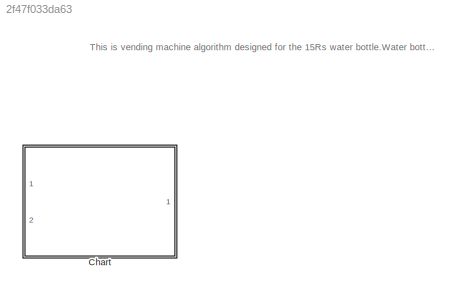
MODEL slx_2f47f033da63
KIND model
CONFIG AbsTol = auto
CONFIG EnableMultiTasking = off
CONFIG FixedStep = auto
CONFIG MaxStep = auto
CONFIG MinStep = auto
CONFIG RelTol = 1e-3
CONFIG SampleTimeConstraint = Unconstrained
CONFIG SolverName = VariableStepAuto
CONFIG StartTime = 0.0
CONFIG StopTime = 10.0
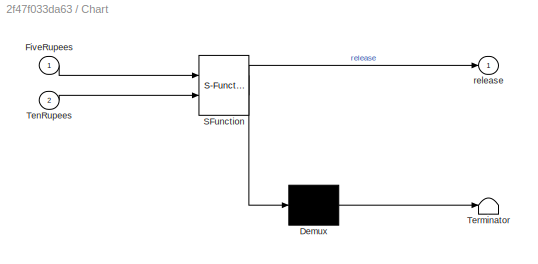
BLOCK [SubSystem] Chart
  ErrorFcn = Stateflow.Translate.translate
  PermitHierarchicalResolution = ExplicitOnly
  Ports = [2, 1]
  RequestExecContextInheritance = off
  SFBlockType = Chart
  TreatAsAtomicUnit = on
BLOCK [Demux] Chart/ Demux 
  Outputs = 1
  Ports = [1, 1]
BLOCK [S-Function] Chart/ SFunction 
  EnableBusSupport = on
  FunctionName = sf_sfun
  PortCounts = [2 2]
  Ports = [2, 2]
  SFcnIsStateOwnerBlock = off
  SFunctionDeploymentMode = off
  Tag = Stateflow S-Function 3
BLOCK [Terminator] Chart/ Terminator 
BLOCK [Inport] Chart/FiveRupees
BLOCK [Inport] Chart/TenRupees
  Port = 2
BLOCK [Outport] Chart/release
ANNOTATION (root): This is vending machine algorithm designed for the 15Rs water bottle.Water bottle will not release until and unless 15Rs are not getting recognised.
CHART Chart states=4 transitions=9
  STATE_LABEL 'Zero'
  STATE_LABEL 'TenRupeesCoin'
  STATE_LABEL 'return\n'
  STATE_LABEL 'fiveRupeescoin'
CHART  states=0 transitions=0
